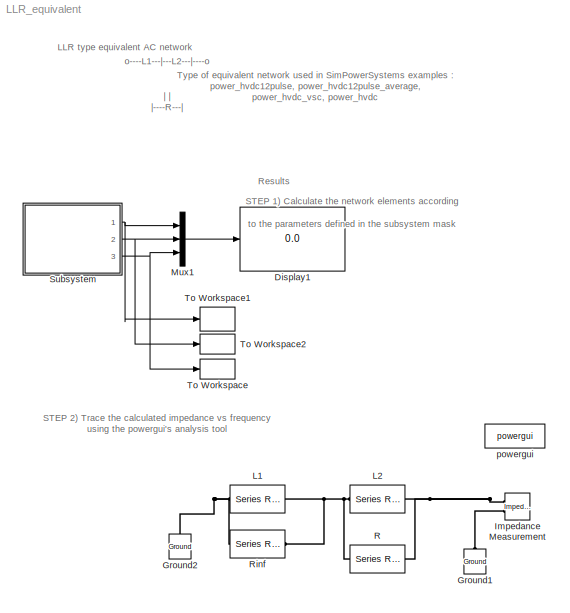
MODEL LLR_equivalent
KIND model
CONFIG PreLoadFcn = L1 = 1;\nL2 = 1;\nR  = 1;
CONFIG StopFcn = if(0)  % PAS UTILISEE\ndisp('*** Réseau équivalent de type LLR: ***');\ndisp('DONNÉES:');\nfprintf( '[1] Fondamentale = %2.0f (Hz),  [2] Harmonique(N) = %1.0f,\\n',f1,N);\nfprintf('[3] Impedance fondamentale = %6.3f(Ohms)\\n',Mod_Zf1);\nfprintf('[4] Angle(fondamentale) = %6.2f(deg), Angle(harmonique) = %6.2f(deg)\\n',Angle_deg,Angle_N_deg);\ndisp('SOLUTION:')\nif(d_err)\ndisp('!Remarque: Ne trouve...<+267ch>
BLOCK [Display] Display1
  AttributesFormatString = 1) L1 (H)        %<Tag>\\n2) L2 (H)        %<Tag>\\n3) R (ohms)    %<Tag>
  Decimation = 1
  Format = short_e
  Ports = [1]
  SID = 1
BLOCK [Reference] Ground1  REF=powerlib/Elements/Ground
  LConnTagsString = a
  Ports = [0, 0, 0, 0, 0, 1]
  SID = 102
  SourceBlock = powerlib/Elements/Ground
  SourceProductBaseCode = PS
  SourceProductName = Simscape Electrical
  SourceType = Ground
BLOCK [Reference] Ground2  REF=powerlib/Elements/Ground
  LConnTagsString = a
  Ports = [0, 0, 0, 0, 0, 1]
  SID = 103
  SourceBlock = powerlib/Elements/Ground
  SourceProductBaseCode = PS
  SourceProductName = Simscape Electrical
  SourceType = Ground
BLOCK [Reference] Impedance Measurement  REF=powerlib/Measurements/Impedance Measurement
  Factor = 1
  LConnTagsString = +|-
  Ports = [0, 0, 0, 0, 0, 2]
  SID = 104
  SourceBlock = powerlib/Measurements/Impedance Measurement
  SourceProductBaseCode = PS
  SourceProductName = Simscape Electrical
  SourceType = Impedance Measurement
BLOCK [Reference] L1  REF=powerlib/Elements/Series RLC Branch
  BranchType = L
  Capacitance = 1e-6
  Inductance = L1
  InitialCurrent = 0
  InitialVoltage = 0
  LConnTagsString = __new0
  Measurements = None
  Ports = [0, 0, 0, 0, 0, 1, 1]
  RConnTagsString = __new0
  Resistance = 1
  SID = 105
  SetiL0 = off
  Setx0 = off
  SourceBlock = powerlib/Elements/Series RLC Branch
  SourceProductBaseCode = PS
  SourceProductName = Simscape Electrical
  SourceType = Series RLC Branch
BLOCK [Reference] L2  REF=powerlib/Elements/Series RLC Branch
  BranchType = L
  Capacitance = 1e-6
  Inductance = L2
  InitialCurrent = 0
  InitialVoltage = 0
  LConnTagsString = __new0
  Measurements = None
  Ports = [0, 0, 0, 0, 0, 1, 1]
  RConnTagsString = __new0
  Resistance = 1
  SID = 106
  SetiL0 = off
  Setx0 = off
  SourceBlock = powerlib/Elements/Series RLC Branch
  SourceProductBaseCode = PS
  SourceProductName = Simscape Electrical
  SourceType = Series RLC Branch
BLOCK [Mux] Mux1
  DisplayOption = bar
  Inputs = 3
  Ports = [3, 1]
  SID = 2
BLOCK [Reference] R  REF=powerlib/Elements/Series RLC Branch
  BranchType = R
  Capacitance = 1e-6
  Inductance = 1e-3
  InitialCurrent = 0
  InitialVoltage = 0
  LConnTagsString = __new0
  Measurements = None
  Ports = [0, 0, 0, 0, 0, 1, 1]
  RConnTagsString = __new0
  Resistance = R
  SID = 107
  SetiL0 = off
  Setx0 = off
  SourceBlock = powerlib/Elements/Series RLC Branch
  SourceProductBaseCode = PS
  SourceProductName = Simscape Electrical
  SourceType = Series RLC Branch
BLOCK [Reference] Rinf  REF=powerlib/Elements/Series RLC Branch
  BranchType = R
  Capacitance = 1e-6
  Inductance = 1e-3
  InitialCurrent = 0
  InitialVoltage = 0
  LConnTagsString = __new0
  Measurements = None
  Ports = [0, 0, 0, 0, 0, 1, 1]
  RConnTagsString = __new0
  Resistance = 1e6
  SID = 108
  SetiL0 = off
  Setx0 = off
  SourceBlock = powerlib/Elements/Series RLC Branch
  SourceProductBaseCode = PS
  SourceProductName = Simscape Electrical
  SourceType = Series RLC Branch
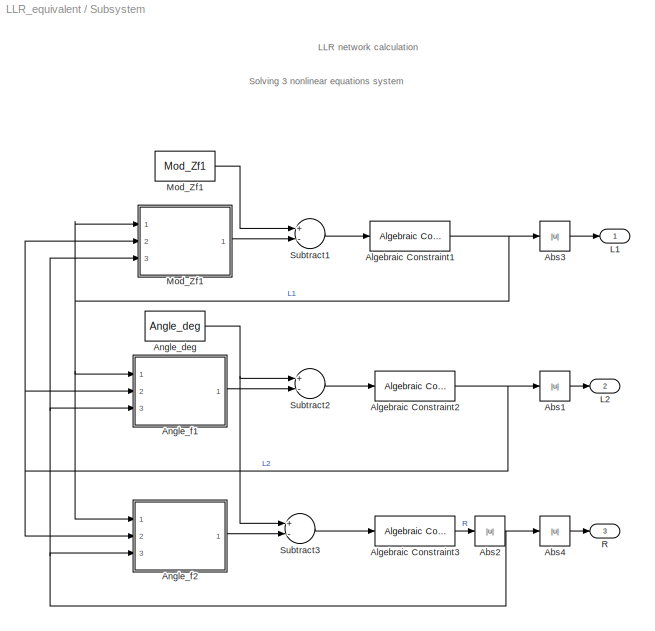
BLOCK [SubSystem] Subsystem
  Ports = [0, 3]
  RequestExecContextInheritance = off
  SID = 3
BLOCK [Abs] Subsystem/Abs1
  SID = 100
  SaturateOnIntegerOverflow = off
BLOCK [Abs] Subsystem/Abs2
  SID = 98
  SaturateOnIntegerOverflow = off
BLOCK [Abs] Subsystem/Abs3
  SID = 99
  SaturateOnIntegerOverflow = off
BLOCK [Abs] Subsystem/Abs4
  SID = 101
  SaturateOnIntegerOverflow = off
BLOCK [Reference] Subsystem/Algebraic Constraint1  REF=simulink/Math\nOperations/Algebraic Constraint
  Ports = [1, 1]
  SID = 4
  SourceBlock = simulink/Math\nOperations/Algebraic Constraint
  SourceProductBaseCode = SL
  SourceProductName = Simulink
  SourceType = Algebraic Constraint
  z0 = Mod_Zf1/(2*pi*f1) *0.4
BLOCK [Reference] Subsystem/Algebraic Constraint2  REF=simulink/Math\nOperations/Algebraic Constraint
  Ports = [1, 1]
  SID = 5
  SourceBlock = simulink/Math\nOperations/Algebraic Constraint
  SourceProductBaseCode = SL
  SourceProductName = Simulink
  SourceType = Algebraic Constraint
  z0 = Mod_Zf1/(2*pi*f1)*0.2
BLOCK [Reference] Subsystem/Algebraic Constraint3  REF=simulink/Math\nOperations/Algebraic Constraint
  Ports = [1, 1]
  SID = 6
  SourceBlock = simulink/Math\nOperations/Algebraic Constraint
  SourceProductBaseCode = SL
  SourceProductName = Simulink
  SourceType = Algebraic Constraint
  z0 = Mod_Zf1*0.3
BLOCK [Constant] Subsystem/Angle_deg
  SID = 7
  Value = Angle_deg
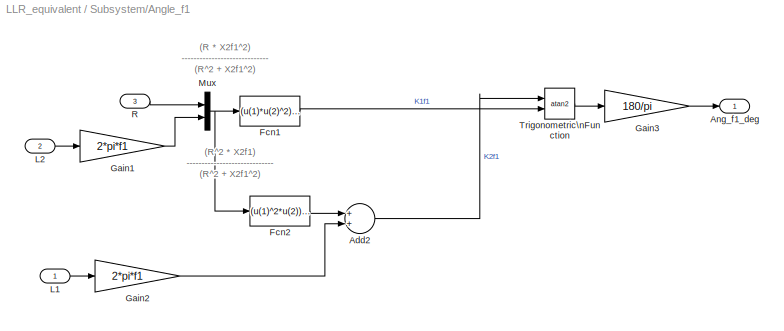
BLOCK [SubSystem] Subsystem/Angle_f1
  Ports = [3, 1]
  RequestExecContextInheritance = off
  SID = 8
BLOCK [Sum] Subsystem/Angle_f1/Add2
  InputSameDT = off
  OutDataTypeStr = Inherit: Inherit via internal rule
  Ports = [2, 1]
  SID = 12
  SaturateOnIntegerOverflow = off
BLOCK [Outport] Subsystem/Angle_f1/Ang_f1_deg
  IconDisplay = Port number
  SID = 20
BLOCK [Fcn] Subsystem/Angle_f1/Fcn1
  Expr = (u(1)*u(2)^2) / (u(1)^2+u(2)^2)
  SID = 13
BLOCK [Fcn] Subsystem/Angle_f1/Fcn2
  Expr = (u(1)^2*u(2)) / (u(1)^2+u(2)^2)
  SID = 14
BLOCK [Gain] Subsystem/Angle_f1/Gain1
  Gain = 2*pi*f1
  OutDataTypeStr = Inherit: Inherit via internal rule
  ParamDataTypeStr = Inherit: Inherit via internal rule
  SID = 15
  SaturateOnIntegerOverflow = off
BLOCK [Gain] Subsystem/Angle_f1/Gain2
  Gain = 2*pi*f1
  OutDataTypeStr = Inherit: Inherit via internal rule
  ParamDataTypeStr = Inherit: Inherit via internal rule
  SID = 16
  SaturateOnIntegerOverflow = off
BLOCK [Gain] Subsystem/Angle_f1/Gain3
  Gain = 180/pi
  OutDataTypeStr = Inherit: Inherit via internal rule
  ParamDataTypeStr = Inherit: Inherit via internal rule
  SID = 17
  SaturateOnIntegerOverflow = off
BLOCK [Inport] Subsystem/Angle_f1/L1
  IconDisplay = Port number
  SID = 9
BLOCK [Inport] Subsystem/Angle_f1/L2
  IconDisplay = Port number
  Port = 2
  SID = 10
BLOCK [Mux] Subsystem/Angle_f1/Mux
  DisplayOption = bar
  Inputs = 2
  Ports = [2, 1]
  SID = 18
BLOCK [Inport] Subsystem/Angle_f1/R
  IconDisplay = Port number
  Port = 3
  SID = 11
BLOCK [Trigonometry] Subsystem/Angle_f1/Trigonometric\nFunction
  Operator = atan2
  Ports = [2, 1]
  SID = 19
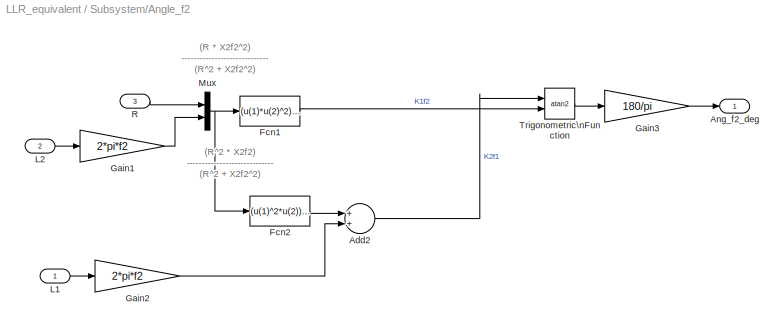
BLOCK [SubSystem] Subsystem/Angle_f2
  Ports = [3, 1]
  RequestExecContextInheritance = off
  SID = 23
BLOCK [Sum] Subsystem/Angle_f2/Add2
  InputSameDT = off
  OutDataTypeStr = Inherit: Inherit via internal rule
  Ports = [2, 1]
  SID = 27
  SaturateOnIntegerOverflow = off
BLOCK [Outport] Subsystem/Angle_f2/Ang_f2_deg
  IconDisplay = Port number
  SID = 35
BLOCK [Fcn] Subsystem/Angle_f2/Fcn1
  Expr = (u(1)*u(2)^2) / (u(1)^2+u(2)^2)
  SID = 28
BLOCK [Fcn] Subsystem/Angle_f2/Fcn2
  Expr = (u(1)^2*u(2)) / (u(1)^2+u(2)^2)
  SID = 29
BLOCK [Gain] Subsystem/Angle_f2/Gain1
  Gain = 2*pi*f2
  OutDataTypeStr = Inherit: Inherit via internal rule
  ParamDataTypeStr = Inherit: Inherit via internal rule
  SID = 30
  SaturateOnIntegerOverflow = off
BLOCK [Gain] Subsystem/Angle_f2/Gain2
  Gain = 2*pi*f2
  OutDataTypeStr = Inherit: Inherit via internal rule
  ParamDataTypeStr = Inherit: Inherit via internal rule
  SID = 31
  SaturateOnIntegerOverflow = off
BLOCK [Gain] Subsystem/Angle_f2/Gain3
  Gain = 180/pi
  OutDataTypeStr = Inherit: Inherit via internal rule
  ParamDataTypeStr = Inherit: Inherit via internal rule
  SID = 32
  SaturateOnIntegerOverflow = off
BLOCK [Inport] Subsystem/Angle_f2/L1
  IconDisplay = Port number
  SID = 24
BLOCK [Inport] Subsystem/Angle_f2/L2
  IconDisplay = Port number
  Port = 2
  SID = 25
BLOCK [Mux] Subsystem/Angle_f2/Mux
  DisplayOption = bar
  Inputs = 2
  Ports = [2, 1]
  SID = 33
BLOCK [Inport] Subsystem/Angle_f2/R
  IconDisplay = Port number
  Port = 3
  SID = 26
BLOCK [Trigonometry] Subsystem/Angle_f2/Trigonometric\nFunction
  Operator = atan2
  Ports = [2, 1]
  SID = 34
BLOCK [Outport] Subsystem/L1
  IconDisplay = Port number
  SID = 58
BLOCK [Outport] Subsystem/L2
  IconDisplay = Port number
  Port = 2
  SID = 59
BLOCK [Constant] Subsystem/Mod_Zf1
  SID = 38
  Value = Mod_Zf1
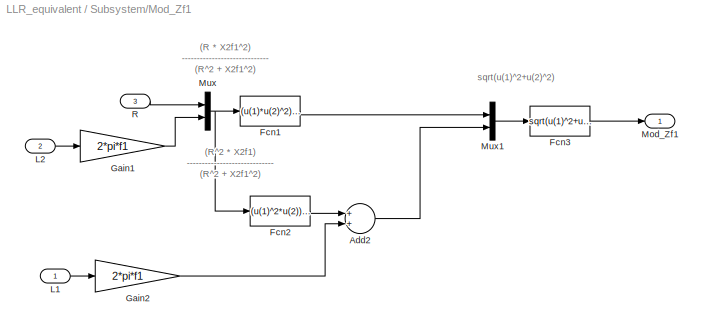
BLOCK [SubSystem] Subsystem/Mod_Zf1 
  Ports = [3, 1]
  RequestExecContextInheritance = off
  SID = 39
BLOCK [Sum] Subsystem/Mod_Zf1 /Add2
  InputSameDT = off
  OutDataTypeStr = Inherit: Inherit via internal rule
  Ports = [2, 1]
  SID = 43
  SaturateOnIntegerOverflow = off
BLOCK [Fcn] Subsystem/Mod_Zf1 /Fcn1
  Expr = (u(1)*u(2)^2) / (u(1)^2+u(2)^2)
  SID = 44
BLOCK [Fcn] Subsystem/Mod_Zf1 /Fcn2
  Expr = (u(1)^2*u(2)) / (u(1)^2+u(2)^2)
  SID = 45
BLOCK [Fcn] Subsystem/Mod_Zf1 /Fcn3
  Expr = sqrt(u(1)^2+u(2)^2)
  SID = 46
BLOCK [Gain] Subsystem/Mod_Zf1 /Gain1
  Gain = 2*pi*f1
  OutDataTypeStr = Inherit: Inherit via internal rule
  ParamDataTypeStr = Inherit: Inherit via internal rule
  SID = 47
  SaturateOnIntegerOverflow = off
BLOCK [Gain] Subsystem/Mod_Zf1 /Gain2
  Gain = 2*pi*f1
  OutDataTypeStr = Inherit: Inherit via internal rule
  ParamDataTypeStr = Inherit: Inherit via internal rule
  SID = 48
  SaturateOnIntegerOverflow = off
BLOCK [Inport] Subsystem/Mod_Zf1 /L1
  IconDisplay = Port number
  SID = 40
BLOCK [Inport] Subsystem/Mod_Zf1 /L2
  IconDisplay = Port number
  Port = 2
  SID = 41
BLOCK [Outport] Subsystem/Mod_Zf1 /Mod_Zf1
  IconDisplay = Port number
  SID = 51
BLOCK [Mux] Subsystem/Mod_Zf1 /Mux
  DisplayOption = bar
  Inputs = 2
  Ports = [2, 1]
  SID = 49
BLOCK [Mux] Subsystem/Mod_Zf1 /Mux1
  DisplayOption = bar
  Inputs = 2
  Ports = [2, 1]
  SID = 50
BLOCK [Inport] Subsystem/Mod_Zf1 /R
  IconDisplay = Port number
  Port = 3
  SID = 42
BLOCK [Outport] Subsystem/R
  IconDisplay = Port number
  Port = 3
  SID = 60
BLOCK [Sum] Subsystem/Subtract1
  InputSameDT = off
  Inputs = +-
  OutDataTypeStr = Inherit: Inherit via internal rule
  Ports = [2, 1]
  SID = 55
  SaturateOnIntegerOverflow = off
BLOCK [Sum] Subsystem/Subtract2
  InputSameDT = off
  Inputs = +-
  OutDataTypeStr = Inherit: Inherit via internal rule
  Ports = [2, 1]
  SID = 56
  SaturateOnIntegerOverflow = off
BLOCK [Sum] Subsystem/Subtract3
  InputSameDT = off
  Inputs = +-
  OutDataTypeStr = Inherit: Inherit via internal rule
  Ports = [2, 1]
  SID = 57
  SaturateOnIntegerOverflow = off
BLOCK [ToWorkspace] To Workspace
  MaxDataPoints = 1
  Ports = [1]
  SID = 67
  SampleTime = -1
  VariableName = R
BLOCK [ToWorkspace] To Workspace1
  MaxDataPoints = 1
  Ports = [1]
  SID = 65
  SampleTime = -1
  VariableName = L1
BLOCK [ToWorkspace] To Workspace2
  MaxDataPoints = 1
  Ports = [1]
  SID = 66
  SampleTime = -1
  VariableName = L2
BLOCK [Reference] powergui  REF=powerlib/powergui
  DisableRonSwitches = off
  DisableSnubberDevices = off
  DisableVfSwitches = off
  DisplayEquations = off
  DisplayStyle = 1
  EnableUseOfTLC = off
  ErrMax = 1e-4
  Frange = [1:2:500]
  FreqAxis = off
  FunctionMessages = off
  HookPort = off
  Interpol = off
  Iterations = 50
  MaxFrequency = 1000
  Pbase = 100e6
  Ports = []
  ResistiveCurrentMeasurement = off
  RestoreLinks = warning
  RmsSteady = 1
  SID = 82
  SPID = off
  SampleTime = 1
  ShowGrid = on
  SolverType = Tustin
  SourceBlock = powerlib/powergui
  SourceProductBaseCode = PS
  SourceProductName = Simscape Electrical
  SourceType = PSB option menu block
  StartTime = 0.0
  SwTol = 0
  Ts = 0
  UnitsV = kV
  UnitsW = MW
  UserData = DataTag0
  UserDataPersistent = on
  Xlog = off
  Ylog = off
  ZoomFFT = on
  cycles = 1
  display = off
  echomessages = off
  frequency = 60
  frequencyindice = 60
  frequencyindicesteady = 1
  fundamental = 60
  methode = off
  save = off
  variable = ZData
  x0status = blocks
ANNOTATION (root): LLR type equivalent AC network
ANNOTATION (root): Results
ANNOTATION (root): STEP 1) Calculate the network elements according\nto the parameters defined in the subsystem mask
ANNOTATION (root): STEP 2) Trace the calculated impedance vs frequency\nusing the powergui's analysis tool
ANNOTATION (root): Type of equivalent network used in SimPowerSystems examples :\npower_hvdc12pulse, power_hvdc12pulse_average, \npower_hvdc_vsc, power_hvdc
ANNOTATION (root): o----L1---|---L2---|----o\n | |\n |----R---|
ANNOTATION Subsystem: LLR network calculation
ANNOTATION Subsystem: Solving 3 nonlinear equations system
ANNOTATION Subsystem/Angle_f1: (R * X2f1^2)\n-----------------------------\n(R^2 + X2f1^2)
ANNOTATION Subsystem/Angle_f1: (R^2 * X2f1)\n-----------------------------\n(R^2 + X2f1^2)
ANNOTATION Subsystem/Angle_f2: (R * X2f2^2)\n-----------------------------\n(R^2 + X2f2^2)
ANNOTATION Subsystem/Angle_f2: (R^2 * X2f2)\n-----------------------------\n(R^2 + X2f2^2)
ANNOTATION Subsystem/Mod_Zf1 : (R * X2f1^2)\n-----------------------------\n(R^2 + X2f1^2)
ANNOTATION Subsystem/Mod_Zf1 : (R^2 * X2f1)\n-----------------------------\n(R^2 + X2f1^2)
ANNOTATION Subsystem/Mod_Zf1 : sqrt(u(1)^2+u(2)^2)
LINE Mux1:1 -> Display1:1
LINE Subsystem/Abs1:1 -> Subsystem/L2:1
NET Subsystem/Abs2:1 -> Subsystem/Abs4:1, Subsystem/Angle_f1:3, Subsystem/Angle_f2:3, Subsystem/Mod_Zf1 :3
LINE Subsystem/Abs3:1 -> Subsystem/L1:1
LINE Subsystem/Abs4:1 -> Subsystem/R:1
NET Subsystem/Algebraic Constraint1:1 -> Subsystem/Abs3:1, Subsystem/Angle_f1:1, Subsystem/Angle_f2:1, Subsystem/Mod_Zf1 :1
NET Subsystem/Algebraic Constraint2:1 -> Subsystem/Abs1:1, Subsystem/Angle_f1:2, Subsystem/Angle_f2:2, Subsystem/Mod_Zf1 :2
LINE Subsystem/Algebraic Constraint3:1 -> Subsystem/Abs2:1
NET Subsystem/Angle_deg:1 -> Subsystem/Subtract2:1, Subsystem/Subtract3:1
LINE Subsystem/Angle_f1/Add2:1 -> Subsystem/Angle_f1/Trigonometric\nFunction:1
LINE Subsystem/Angle_f1/Fcn1:1 -> Subsystem/Angle_f1/Trigonometric\nFunction:2
LINE Subsystem/Angle_f1/Fcn2:1 -> Subsystem/Angle_f1/Add2:1
LINE Subsystem/Angle_f1/Gain1:1 -> Subsystem/Angle_f1/Mux:2
LINE Subsystem/Angle_f1/Gain2:1 -> Subsystem/Angle_f1/Add2:2
LINE Subsystem/Angle_f1/Gain3:1 -> Subsystem/Angle_f1/Ang_f1_deg:1
LINE Subsystem/Angle_f1/L1:1 -> Subsystem/Angle_f1/Gain2:1
LINE Subsystem/Angle_f1/L2:1 -> Subsystem/Angle_f1/Gain1:1
NET Subsystem/Angle_f1/Mux:1 -> Subsystem/Angle_f1/Fcn1:1, Subsystem/Angle_f1/Fcn2:1
LINE Subsystem/Angle_f1/R:1 -> Subsystem/Angle_f1/Mux:1
LINE Subsystem/Angle_f1/Trigonometric\nFunction:1 -> Subsystem/Angle_f1/Gain3:1
LINE Subsystem/Angle_f1:1 -> Subsystem/Subtract2:2
LINE Subsystem/Angle_f2/Add2:1 -> Subsystem/Angle_f2/Trigonometric\nFunction:1
LINE Subsystem/Angle_f2/Fcn1:1 -> Subsystem/Angle_f2/Trigonometric\nFunction:2
LINE Subsystem/Angle_f2/Fcn2:1 -> Subsystem/Angle_f2/Add2:1
LINE Subsystem/Angle_f2/Gain1:1 -> Subsystem/Angle_f2/Mux:2
LINE Subsystem/Angle_f2/Gain2:1 -> Subsystem/Angle_f2/Add2:2
LINE Subsystem/Angle_f2/Gain3:1 -> Subsystem/Angle_f2/Ang_f2_deg:1
LINE Subsystem/Angle_f2/L1:1 -> Subsystem/Angle_f2/Gain2:1
LINE Subsystem/Angle_f2/L2:1 -> Subsystem/Angle_f2/Gain1:1
NET Subsystem/Angle_f2/Mux:1 -> Subsystem/Angle_f2/Fcn1:1, Subsystem/Angle_f2/Fcn2:1
LINE Subsystem/Angle_f2/R:1 -> Subsystem/Angle_f2/Mux:1
LINE Subsystem/Angle_f2/Trigonometric\nFunction:1 -> Subsystem/Angle_f2/Gain3:1
LINE Subsystem/Angle_f2:1 -> Subsystem/Subtract3:2
LINE Subsystem/Mod_Zf1 /Add2:1 -> Subsystem/Mod_Zf1 /Mux1:2
LINE Subsystem/Mod_Zf1 /Fcn1:1 -> Subsystem/Mod_Zf1 /Mux1:1
LINE Subsystem/Mod_Zf1 /Fcn2:1 -> Subsystem/Mod_Zf1 /Add2:1
LINE Subsystem/Mod_Zf1 /Fcn3:1 -> Subsystem/Mod_Zf1 /Mod_Zf1:1
LINE Subsystem/Mod_Zf1 /Gain1:1 -> Subsystem/Mod_Zf1 /Mux:2
LINE Subsystem/Mod_Zf1 /Gain2:1 -> Subsystem/Mod_Zf1 /Add2:2
LINE Subsystem/Mod_Zf1 /L1:1 -> Subsystem/Mod_Zf1 /Gain2:1
LINE Subsystem/Mod_Zf1 /L2:1 -> Subsystem/Mod_Zf1 /Gain1:1
LINE Subsystem/Mod_Zf1 /Mux1:1 -> Subsystem/Mod_Zf1 /Fcn3:1
NET Subsystem/Mod_Zf1 /Mux:1 -> Subsystem/Mod_Zf1 /Fcn1:1, Subsystem/Mod_Zf1 /Fcn2:1
LINE Subsystem/Mod_Zf1 /R:1 -> Subsystem/Mod_Zf1 /Mux:1
LINE Subsystem/Mod_Zf1 :1 -> Subsystem/Subtract1:2
LINE Subsystem/Mod_Zf1:1 -> Subsystem/Subtract1:1
LINE Subsystem/Subtract1:1 -> Subsystem/Algebraic Constraint1:1
LINE Subsystem/Subtract2:1 -> Subsystem/Algebraic Constraint2:1
LINE Subsystem/Subtract3:1 -> Subsystem/Algebraic Constraint3:1
NET Subsystem:1 -> Mux1:1, To Workspace1:1
NET Subsystem:2 -> Mux1:2, To Workspace2:1
NET Subsystem:3 -> Mux1:3, To Workspace:1
PLINE Ground1:LConn1 -- Impedance Measurement:LConn2
PNET net1: Ground2:LConn1 -- L1:LConn1 -- Rinf:LConn1
PNET net2: Impedance Measurement:LConn1 -- L2:RConn1 -- R:RConn1
PNET net3: L1:RConn1 -- L2:LConn1 -- R:LConn1 -- Rinf:RConn1
note: NET lines group one-source signal fan-out (src -> all destinations, sorted); 1:1 wires keep LINE; PNET lines group multi-terminal physical nets as a canonical sorted terminal list (undirected conserving connections); 2-terminal nets keep the pairwise PLINE form
